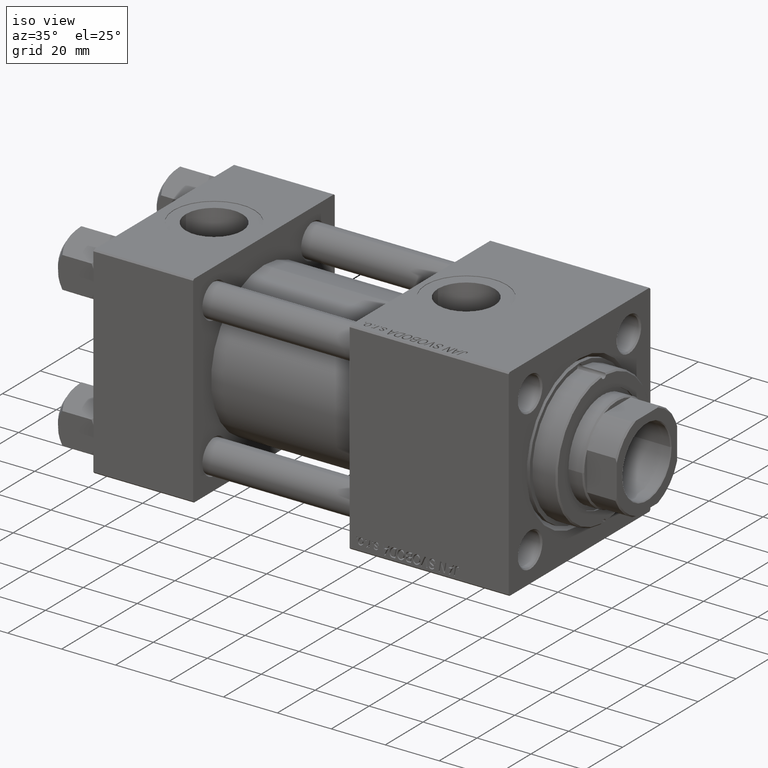
[diagram: clean part render]
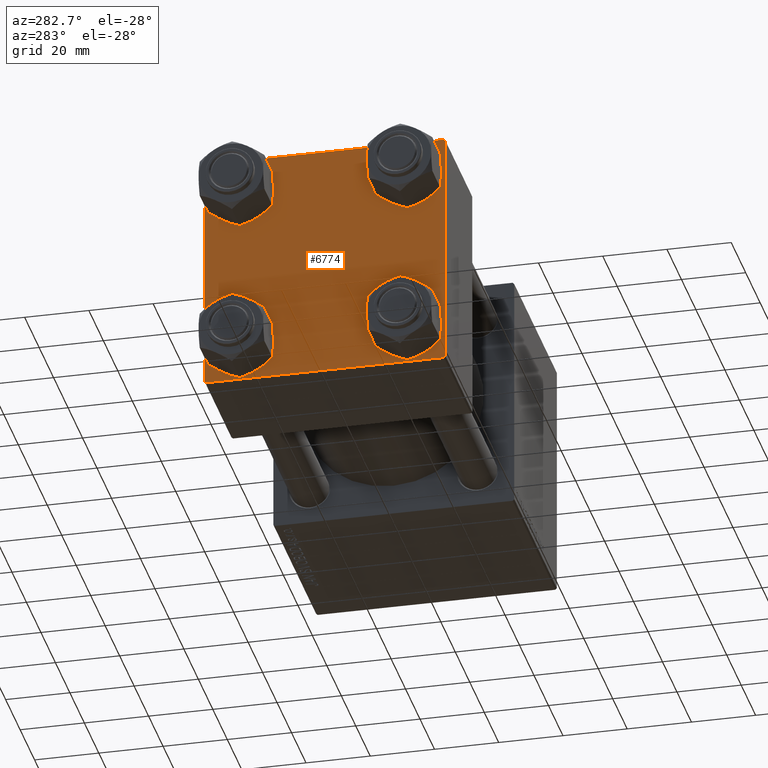
[diagram: tour spotlight — one face highlighted and labeled with its STEP entity id]
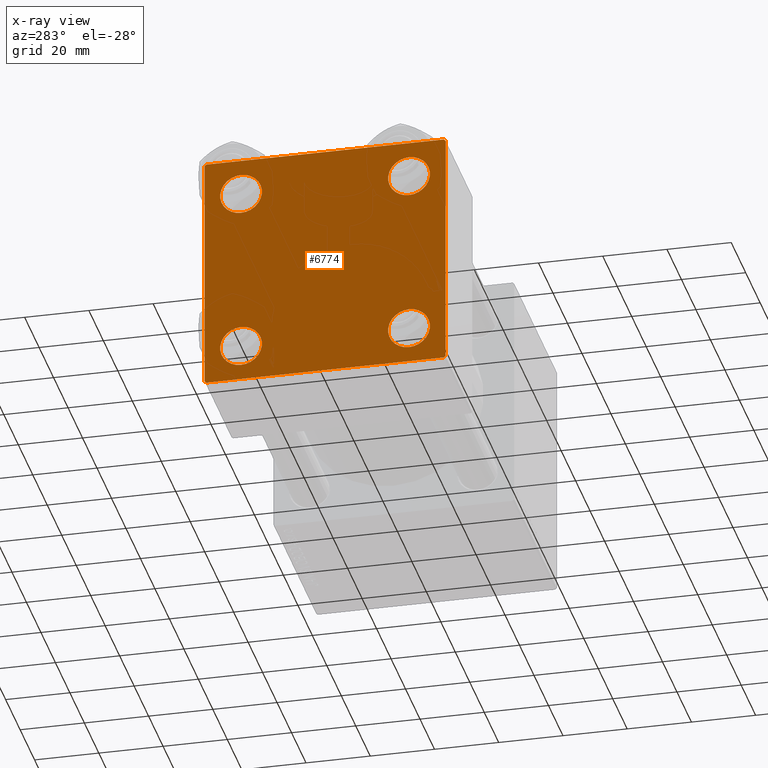
[diagram: x-ray of the same camera — body ghosted, this tour face saturated]
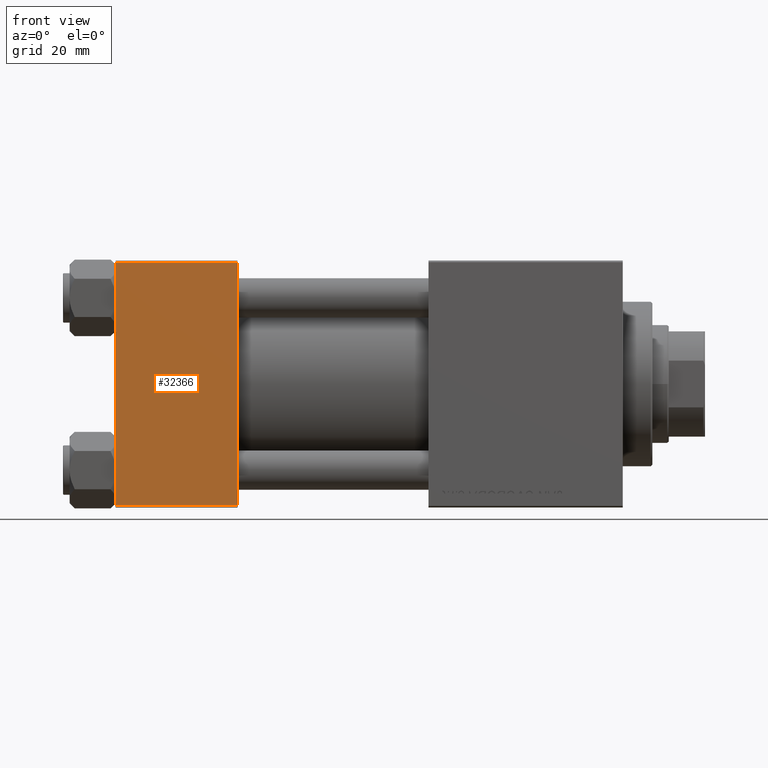
[diagram: tour spotlight — one face highlighted and labeled with its STEP entity id]
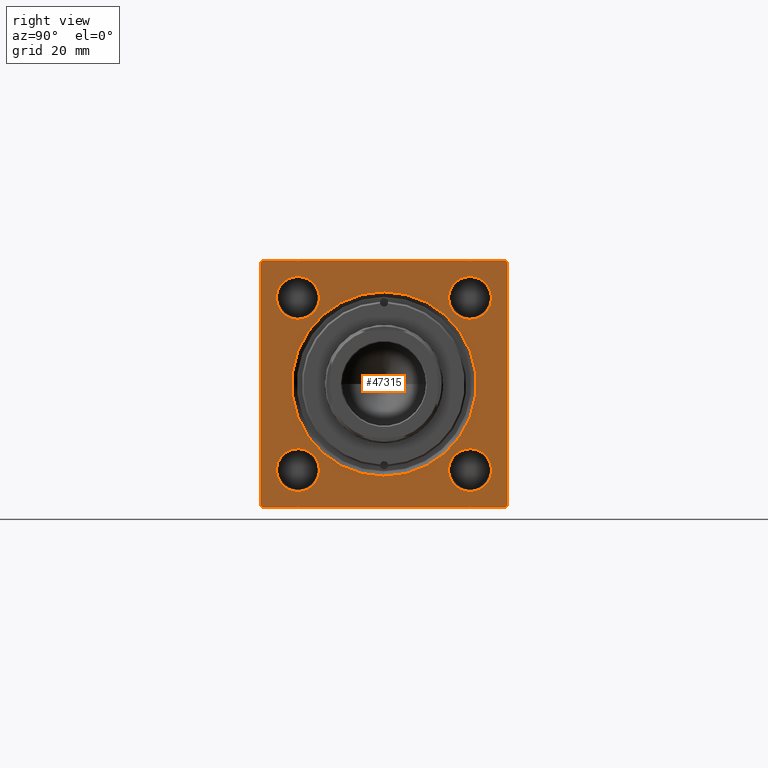
[diagram: tour spotlight — one face highlighted and labeled with its STEP entity id]
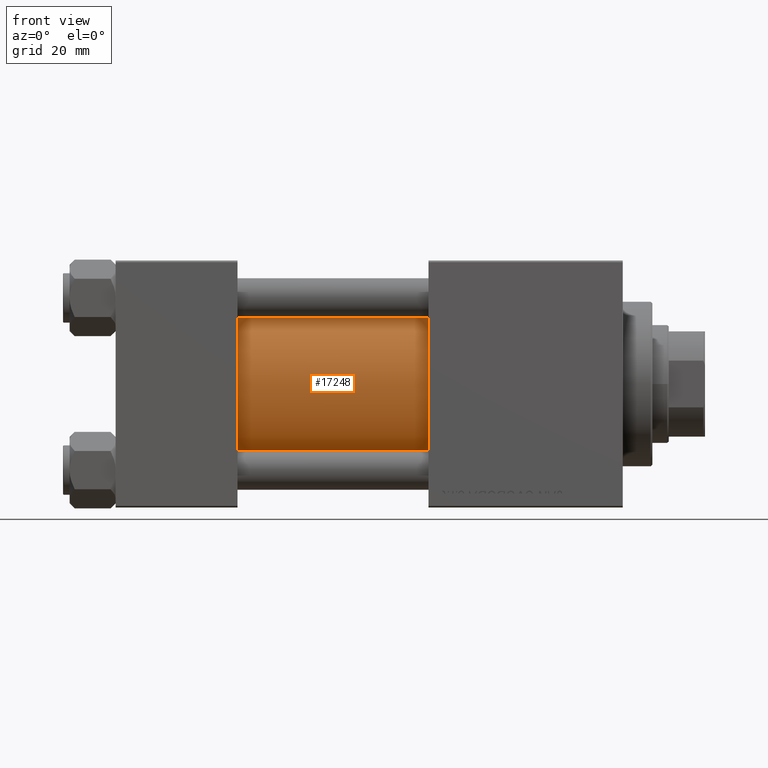
[diagram: tour spotlight — one face highlighted and labeled with its STEP entity id]
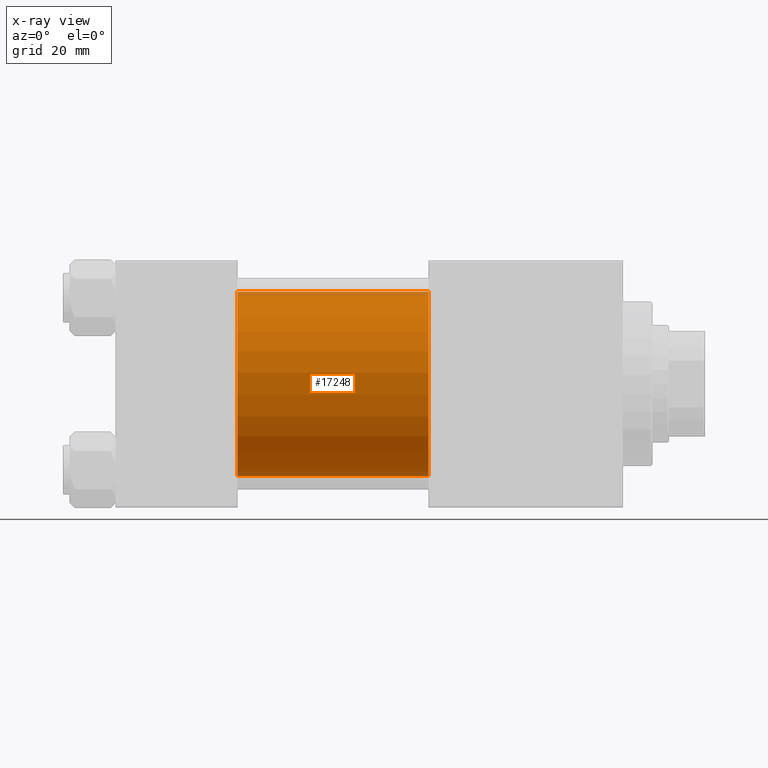
[diagram: x-ray of the same camera — body ghosted, this tour face saturated]
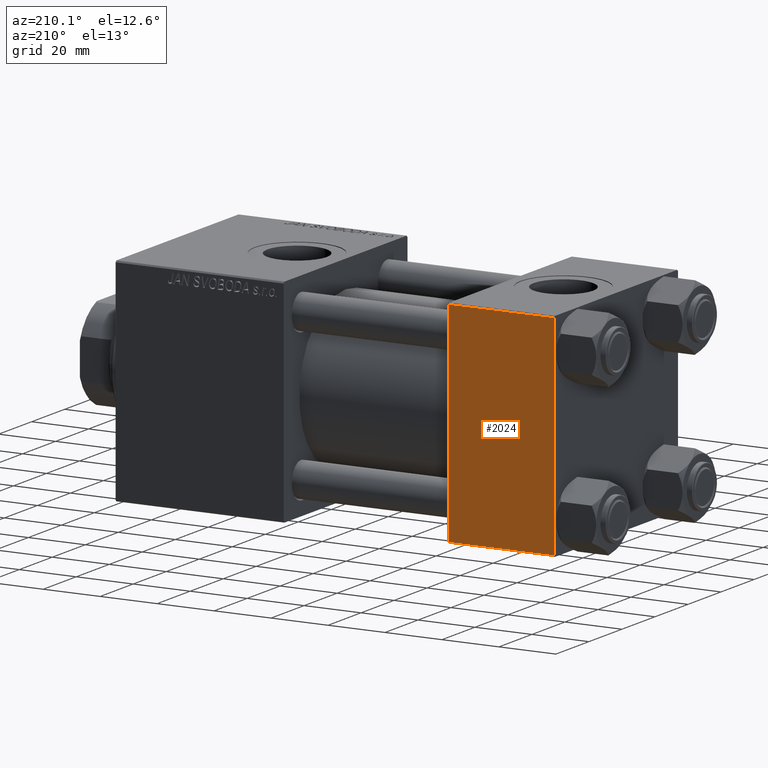
[diagram: tour spotlight — one face highlighted and labeled with its STEP entity id]
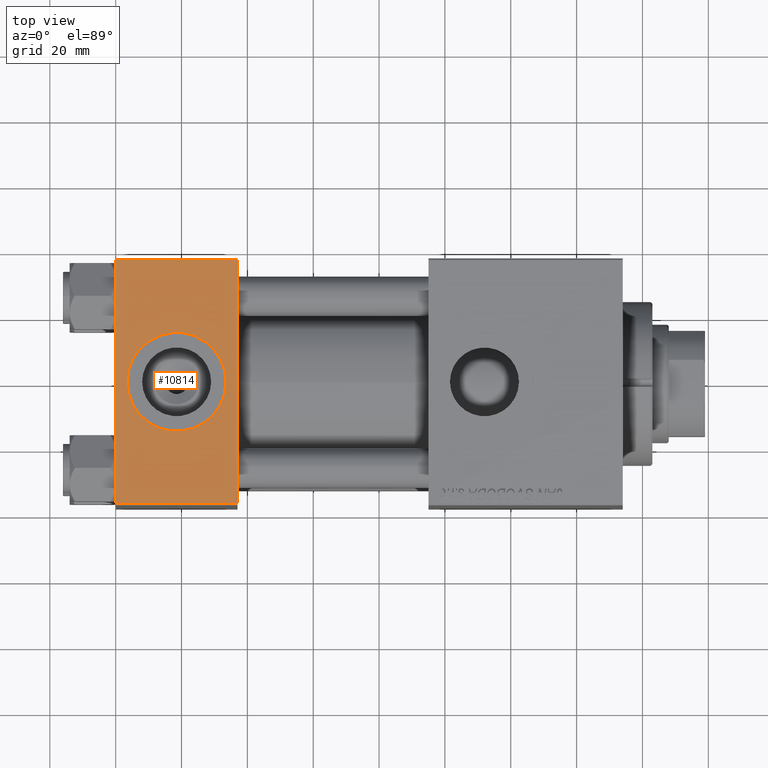
[diagram: tour spotlight — one face highlighted and labeled with its STEP entity id]
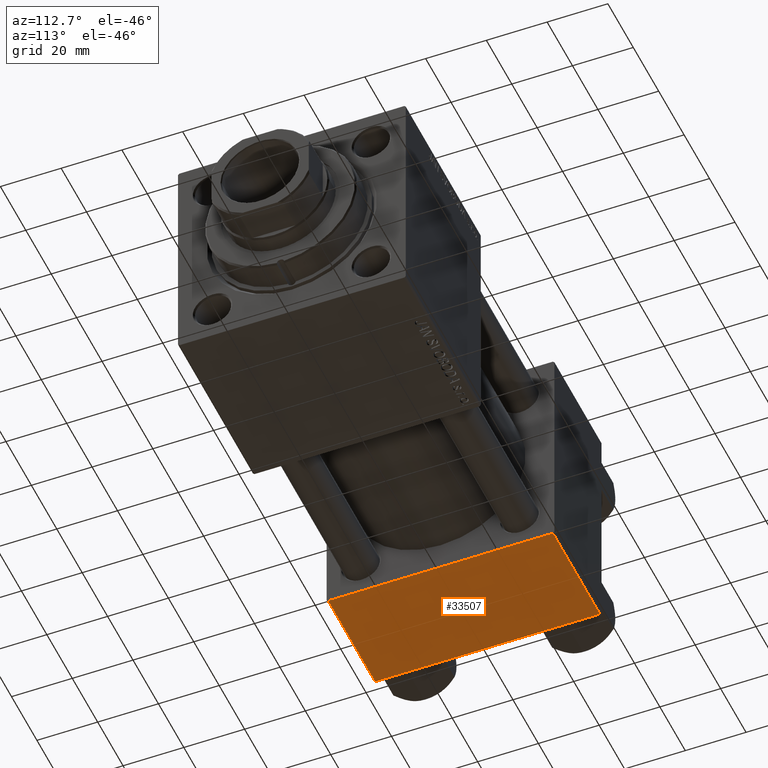
[diagram: tour spotlight — one face highlighted and labeled with its STEP entity id]
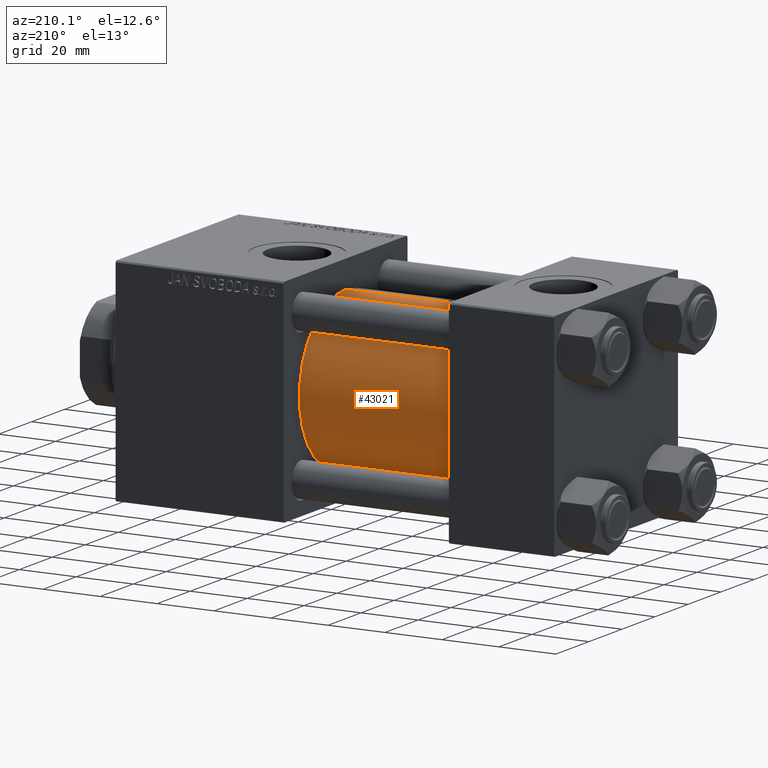
[diagram: tour spotlight — one face highlighted and labeled with its STEP entity id]
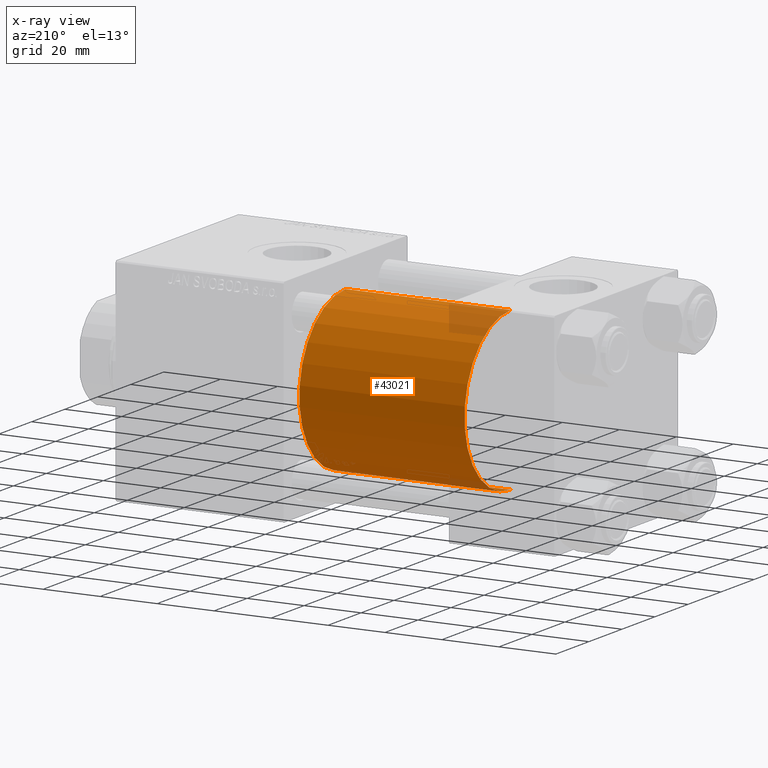
[diagram: x-ray of the same camera — body ghosted, this tour face saturated]
A machine part: a face-by-face anatomy tour. The part has 1154 B-rep faces; the first image is the clean iso view, then the 8 largest visible faces are spotlighted one at a time (largest first), each with its STEP entity span.

Face 1 — auxiliary view, entity #6774. An x-ray twin of the same camera follows (body ghosted, this face saturated) — the face is partly hidden behind the body. In plain terms, the highlighted planar face has unit normal (-1, 0, 0).
Definition (entity closure, byte-faithful):
#21 = CARTESIAN_POINT ( 'NONE',  ( 0.000000000000000000, -37.50000000000000711, 37.49999999999999289 ) ) ;
#38 = CIRCLE ( 'NONE', #38214, 6.500000000000015987 ) ;
#2453 = LINE ( 'NONE', #33061, #19572 ) ;
#2459 = CARTESIAN_POINT ( 'NONE',  ( 0.000000000000000000, 0.000000000000000000, 0.000000000000000000 ) ) ;
#2835 = LINE ( 'NONE', #21, #11469 ) ;
#3163 = CARTESIAN_POINT ( 'NONE',  ( 0.000000000000000000, 36.99999999999997868, -37.50000000000000000 ) ) ;
#3748 = DIRECTION ( 'NONE',  ( 1.000000000000000000, -0.000000000000000000, 0.000000000000000000 ) ) ;
#3811 = CARTESIAN_POINT ( 'NONE',  ( 0.000000000000000000, 26.14999999999999858, -19.64999999999998792 ) ) ;
#4227 = CARTESIAN_POINT ( 'NONE',  ( 0.000000000000000000, -26.14999999999999147, -32.65000000000002700 ) ) ;
#4243 = VERTEX_POINT ( 'NONE', #14207 ) ;
#4665 = LINE ( 'NONE', #16629, #25143 ) ;
#5127 = AXIS2_PLACEMENT_3D ( 'NONE', #48497, #5662, #40333 ) ;
#5648 = EDGE_CURVE ( 'NONE', #4243, #44202, #42470, .T. ) ;
#5662 = DIRECTION ( 'NONE',  ( 1.000000000000000000, -0.000000000000000000, 0.000000000000000000 ) ) ;
#6078 = CARTESIAN_POINT ( 'NONE',  ( 0.000000000000000000, -26.14999999999999147, -19.64999999999999503 ) ) ;
#6277 = FACE_OUTER_BOUND ( 'NONE', #6380, .T. ) ;
#6380 = EDGE_LOOP ( 'NONE', ( #34938, #46342, #20789, #32815, #6808, #30393, #45010, #8440 ) ) ;
#6588 = CARTESIAN_POINT ( 'NONE',  ( 0.000000000000000000, -26.14999999999999147, 26.15000000000000924 ) ) ;
#6774 = ADVANCED_FACE ( 'NONE', ( #13914, #45294, #29497, #10101, #6277 ), #37398, .T. ) ;
#6808 = ORIENTED_EDGE ( 'NONE', *, *, #7170, .F. ) ;
#6833 = VERTEX_POINT ( 'NONE', #4227 ) ;
#7170 = EDGE_CURVE ( 'NONE', #25202, #41153, #2835, .T. ) ;
#7428 = EDGE_CURVE ( 'NONE', #25202, #24914, #14678, .T. ) ;
#7674 = LINE ( 'NONE', #27295, #24661 ) ;
#8440 = ORIENTED_EDGE ( 'NONE', *, *, #27799, .T. ) ;
#8867 = EDGE_CURVE ( 'NONE', #11605, #9486, #34408, .T. ) ;
#9406 = CIRCLE ( 'NONE', #22428, 6.500000000000015987 ) ;
#9486 = VERTEX_POINT ( 'NONE', #3163 ) ;
#10101 = FACE_BOUND ( 'NONE', #16604, .T. ) ;
#10135 = CARTESIAN_POINT ( 'NONE',  ( 0.000000000000000000, 26.14999999999999858, 26.15000000000000213 ) ) ;
#11378 = DIRECTION ( 'NONE',  ( 0.000000000000000000, 0.000000000000000000, 1.000000000000000000 ) ) ;
#11469 = VECTOR ( 'NONE', #45676, 1000.000000000000000 ) ;
#11605 = VERTEX_POINT ( 'NONE', #29239 ) ;
#11994 = DIRECTION ( 'NONE',  ( 0.000000000000000000, -1.000000000000000000, -9.251858538542971581E-17 ) ) ;
#12942 = DIRECTION ( 'NONE',  ( 1.000000000000000000, -0.000000000000000000, 0.000000000000000000 ) ) ;
#13188 = CIRCLE ( 'NONE', #39281, 6.500000000000015987 ) ;
#13840 = DIRECTION ( 'NONE',  ( 1.000000000000000000, -0.000000000000000000, 0.000000000000000000 ) ) ;
#13914 = FACE_BOUND ( 'NONE', #23428, .T. ) ;
#14207 = CARTESIAN_POINT ( 'NONE',  ( 0.000000000000000000, 26.14999999999999858, 19.64999999999998437 ) ) ;
#14228 = DIRECTION ( 'NONE',  ( 1.000000000000000000, -0.000000000000000000, 0.000000000000000000 ) ) ;
#14284 = DIRECTION ( 'NONE',  ( 1.000000000000000000, -0.000000000000000000, 0.000000000000000000 ) ) ;
#14678 = LINE ( 'NONE', #41975, #35091 ) ;
#14959 = CARTESIAN_POINT ( 'NONE',  ( 0.000000000000000000, -26.14999999999999147, 26.15000000000000924 ) ) ;
#15063 = LINE ( 'NONE', #46707, #28856 ) ;
#15534 = DIRECTION ( 'NONE',  ( 1.000000000000000000, -0.000000000000000000, 0.000000000000000000 ) ) ;
#16387 = ORIENTED_EDGE ( 'NONE', *, *, #36297, .T. ) ;
#16604 = EDGE_LOOP ( 'NONE', ( #22097, #27252 ) ) ;
#16629 = CARTESIAN_POINT ( 'NONE',  ( 0.000000000000000000, 37.49999999999999289, -37.50000000000000000 ) ) ;
#17904 = CARTESIAN_POINT ( 'NONE',  ( 0.000000000000000000, -37.50000000000000000, -37.00000000000003553 ) ) ;
#17986 = DIRECTION ( 'NONE',  ( -0.000000000000000000, 0.000000000000000000, 1.000000000000000000 ) ) ;
#18243 = VECTOR ( 'NONE', #43688, 1000.000000000000000 ) ;
#19572 = VECTOR ( 'NONE', #33306, 1000.000000000000114 ) ;
#20460 = AXIS2_PLACEMENT_3D ( 'NONE', #44224, #13840, #29423 ) ;
#20789 = ORIENTED_EDGE ( 'NONE', *, *, #23470, .T. ) ;
#21505 = VERTEX_POINT ( 'NONE', #35139 ) ;
#22097 = ORIENTED_EDGE ( 'NONE', *, *, #34506, .T. ) ;
#22128 = AXIS2_PLACEMENT_3D ( 'NONE', #2459, #49622, #17986 ) ;
#22428 = AXIS2_PLACEMENT_3D ( 'NONE', #27192, #3748, #11378 ) ;
#22775 = ORIENTED_EDGE ( 'NONE', *, *, #34688, .T. ) ;
#22856 = DIRECTION ( 'NONE',  ( 1.000000000000000000, -0.000000000000000000, 0.000000000000000000 ) ) ;
#22876 = DIRECTION ( 'NONE',  ( 0.000000000000000000, 0.000000000000000000, 1.000000000000000000 ) ) ;
#22900 = CARTESIAN_POINT ( 'NONE',  ( 0.000000000000000000, -37.00000000000002132, -37.50000000000000711 ) ) ;
#23428 = EDGE_LOOP ( 'NONE', ( #22775, #39638 ) ) ;
#23463 = DIRECTION ( 'NONE',  ( 0.000000000000000000, -0.7071067811865524577, 0.7071067811865426878 ) ) ;
#23470 = EDGE_CURVE ( 'NONE', #9486, #23859, #4665, .T. ) ;
#23647 = VERTEX_POINT ( 'NONE', #46698 ) ;
#23794 = CIRCLE ( 'NONE', #27868, 6.500000000000023093 ) ;
#23859 = VERTEX_POINT ( 'NONE', #22900 ) ;
#24661 = VECTOR ( 'NONE', #23463, 1000.000000000000000 ) ;
#24914 = VERTEX_POINT ( 'NONE', #47250 ) ;
#25143 = VECTOR ( 'NONE', #47744, 1000.000000000000000 ) ;
#25202 = VERTEX_POINT ( 'NONE', #35728 ) ;
#25394 = AXIS2_PLACEMENT_3D ( 'NONE', #10135, #12942, #25683 ) ;
#25683 = DIRECTION ( 'NONE',  ( 0.000000000000000000, 0.000000000000000000, 1.000000000000000000 ) ) ;
#27192 = CARTESIAN_POINT ( 'NONE',  ( 0.000000000000000000, -26.14999999999999147, -26.15000000000000924 ) ) ;
#27252 = ORIENTED_EDGE ( 'NONE', *, *, #5648, .T. ) ;
#27295 = CARTESIAN_POINT ( 'NONE',  ( 0.000000000000000000, -37.24999999999975842, -37.25000000000027001 ) ) ;
#27697 = EDGE_CURVE ( 'NONE', #49457, #34279, #38, .T. ) ;
#27799 = EDGE_CURVE ( 'NONE', #47084, #23647, #2453, .T. ) ;
#27868 = AXIS2_PLACEMENT_3D ( 'NONE', #14959, #22856, #45332 ) ;
#28856 = VECTOR ( 'NONE', #11994, 1000.000000000000000 ) ;
#29239 = CARTESIAN_POINT ( 'NONE',  ( 0.000000000000000000, 37.49999999999999289, -36.99999999999998579 ) ) ;
#29423 = DIRECTION ( 'NONE',  ( 0.000000000000000000, 0.000000000000000000, 1.000000000000000000 ) ) ;
#29497 = FACE_BOUND ( 'NONE', #41516, .T. ) ;
#29745 = VERTEX_POINT ( 'NONE', #30767 ) ;
#30001 = DIRECTION ( 'NONE',  ( -0.000000000000000000, 0.7071067811865474617, 0.7071067811865474617 ) ) ;
#30393 = ORIENTED_EDGE ( 'NONE', *, *, #7428, .T. ) ;
#30767 = CARTESIAN_POINT ( 'NONE',  ( 0.000000000000000000, -26.14999999999999147, 32.65000000000003411 ) ) ;
#30850 = VERTEX_POINT ( 'NONE', #6078 ) ;
#31122 = DIRECTION ( 'NONE',  ( 0.000000000000000000, 0.000000000000000000, 1.000000000000000000 ) ) ;
#32708 = LINE ( 'NONE', #48257, #18243 ) ;
#32815 = ORIENTED_EDGE ( 'NONE', *, *, #36462, .T. ) ;
#33061 = CARTESIAN_POINT ( 'NONE',  ( 0.000000000000000000, 37.24999999999999289, 37.24999999999999289 ) ) ;
#33306 = DIRECTION ( 'NONE',  ( 0.000000000000000000, 0.7071067811865474617, -0.7071067811865474617 ) ) ;
#34279 = VERTEX_POINT ( 'NONE', #3811 ) ;
#34408 = LINE ( 'NONE', #39482, #46547 ) ;
#34506 = EDGE_CURVE ( 'NONE', #44202, #4243, #43327, .T. ) ;
#34688 = EDGE_CURVE ( 'NONE', #29745, #21505, #23794, .T. ) ;
#34938 = ORIENTED_EDGE ( 'NONE', *, *, #43058, .T. ) ;
#35091 = VECTOR ( 'NONE', #30001, 1000.000000000000114 ) ;
#35139 = CARTESIAN_POINT ( 'NONE',  ( 0.000000000000000000, -26.14999999999999147, 19.64999999999999147 ) ) ;
#35144 = EDGE_CURVE ( 'NONE', #6833, #30850, #13188, .T. ) ;
#35324 = AXIS2_PLACEMENT_3D ( 'NONE', #6588, #14228, #44859 ) ;
#35728 = CARTESIAN_POINT ( 'NONE',  ( 0.000000000000000000, -37.50000000000000711, 36.99999999999999289 ) ) ;
#36297 = EDGE_CURVE ( 'NONE', #34279, #49457, #49102, .T. ) ;
#36462 = EDGE_CURVE ( 'NONE', #23859, #41153, #7674, .T. ) ;
#37398 = PLANE ( 'NONE',  #22128 ) ;
#38138 = CARTESIAN_POINT ( 'NONE',  ( 0.000000000000000000, 36.99999999999999289, 37.50000000000000000 ) ) ;
#38214 = AXIS2_PLACEMENT_3D ( 'NONE', #49238, #14284, #22876 ) ;
#38335 = EDGE_CURVE ( 'NONE', #21505, #29745, #45895, .T. ) ;
#38479 = DIRECTION ( 'NONE',  ( -0.000000000000000000, -0.7071067811865474617, -0.7071067811865474617 ) ) ;
#39281 = AXIS2_PLACEMENT_3D ( 'NONE', #45653, #15534, #31122 ) ;
#39482 = CARTESIAN_POINT ( 'NONE',  ( 0.000000000000000000, 37.24999999999998579, -37.24999999999998579 ) ) ;
#39638 = ORIENTED_EDGE ( 'NONE', *, *, #38335, .T. ) ;
#40333 = DIRECTION ( 'NONE',  ( 0.000000000000000000, 0.000000000000000000, 1.000000000000000000 ) ) ;
#41153 = VERTEX_POINT ( 'NONE', #17904 ) ;
#41516 = EDGE_LOOP ( 'NONE', ( #16387, #45796 ) ) ;
#41831 = EDGE_LOOP ( 'NONE', ( #49414, #45802 ) ) ;
#41965 = CARTESIAN_POINT ( 'NONE',  ( 0.000000000000000000, 26.14999999999999858, -32.65000000000001990 ) ) ;
#41975 = CARTESIAN_POINT ( 'NONE',  ( -0.000000000000000000, -37.25000000000000000, 37.25000000000000000 ) ) ;
#42470 = CIRCLE ( 'NONE', #20460, 6.500000000000023093 ) ;
#43058 = EDGE_CURVE ( 'NONE', #23647, #11605, #32708, .T. ) ;
#43182 = EDGE_CURVE ( 'NONE', #47084, #24914, #15063, .T. ) ;
#43327 = CIRCLE ( 'NONE', #25394, 6.500000000000023093 ) ;
#43394 = CARTESIAN_POINT ( 'NONE',  ( 0.000000000000000000, 26.14999999999999858, 32.65000000000002700 ) ) ;
#43688 = DIRECTION ( 'NONE',  ( 0.000000000000000000, 0.000000000000000000, -1.000000000000000000 ) ) ;
#44202 = VERTEX_POINT ( 'NONE', #43394 ) ;
#44224 = CARTESIAN_POINT ( 'NONE',  ( 0.000000000000000000, 26.14999999999999858, 26.15000000000000213 ) ) ;
#44859 = DIRECTION ( 'NONE',  ( 0.000000000000000000, 0.000000000000000000, 1.000000000000000000 ) ) ;
#45010 = ORIENTED_EDGE ( 'NONE', *, *, #43182, .F. ) ;
#45024 = EDGE_CURVE ( 'NONE', #30850, #6833, #9406, .T. ) ;
#45294 = FACE_BOUND ( 'NONE', #41831, .T. ) ;
#45332 = DIRECTION ( 'NONE',  ( 0.000000000000000000, 0.000000000000000000, 1.000000000000000000 ) ) ;
#45653 = CARTESIAN_POINT ( 'NONE',  ( 0.000000000000000000, -26.14999999999999147, -26.15000000000000924 ) ) ;
#45676 = DIRECTION ( 'NONE',  ( 0.000000000000000000, 9.251858538542971581E-17, -1.000000000000000000 ) ) ;
#45796 = ORIENTED_EDGE ( 'NONE', *, *, #27697, .T. ) ;
#45802 = ORIENTED_EDGE ( 'NONE', *, *, #35144, .T. ) ;
#45895 = CIRCLE ( 'NONE', #35324, 6.500000000000023093 ) ;
#46342 = ORIENTED_EDGE ( 'NONE', *, *, #8867, .T. ) ;
#46547 = VECTOR ( 'NONE', #38479, 1000.000000000000114 ) ;
#46698 = CARTESIAN_POINT ( 'NONE',  ( 0.000000000000000000, 37.49999999999999289, 37.00000000000000000 ) ) ;
#46707 = CARTESIAN_POINT ( 'NONE',  ( 0.000000000000000000, 37.49999999999999289, 37.50000000000000000 ) ) ;
#47084 = VERTEX_POINT ( 'NONE', #38138 ) ;
#47250 = CARTESIAN_POINT ( 'NONE',  ( 0.000000000000000000, -37.00000000000000711, 37.49999999999999289 ) ) ;
#47744 = DIRECTION ( 'NONE',  ( 0.000000000000000000, -1.000000000000000000, -9.251858538542972814E-17 ) ) ;
#48257 = CARTESIAN_POINT ( 'NONE',  ( 0.000000000000000000, 37.49999999999999289, 37.50000000000000000 ) ) ;
#48497 = CARTESIAN_POINT ( 'NONE',  ( 0.000000000000000000, 26.14999999999999858, -26.15000000000000213 ) ) ;
#49102 = CIRCLE ( 'NONE', #5127, 6.500000000000015987 ) ;
#49238 = CARTESIAN_POINT ( 'NONE',  ( 0.000000000000000000, 26.14999999999999858, -26.15000000000000213 ) ) ;
#49414 = ORIENTED_EDGE ( 'NONE', *, *, #45024, .T. ) ;
#49457 = VERTEX_POINT ( 'NONE', #41965 ) ;
#49622 = DIRECTION ( 'NONE',  ( -1.000000000000000000, 0.000000000000000000, -0.000000000000000000 ) ) ;

Face 2 — front view, entity #32366. In plain terms, the highlighted planar face has unit normal (0, 1, 0).
Definition (entity closure, byte-faithful):
#21 = CARTESIAN_POINT ( 'NONE',  ( 0.000000000000000000, -37.50000000000000711, 37.49999999999999289 ) ) ;
#591 = ORIENTED_EDGE ( 'NONE', *, *, #31151, .F. ) ;
#2835 = LINE ( 'NONE', #21, #11469 ) ;
#3476 = CARTESIAN_POINT ( 'NONE',  ( 37.00000000000000000, -37.50000000000000711, 36.99999999999999289 ) ) ;
#4409 = DIRECTION ( 'NONE',  ( 1.000000000000000000, 0.000000000000000000, 0.000000000000000000 ) ) ;
#4773 = VECTOR ( 'NONE', #4409, 1000.000000000000000 ) ;
#7170 = EDGE_CURVE ( 'NONE', #25202, #41153, #2835, .T. ) ;
#7271 = FACE_OUTER_BOUND ( 'NONE', #8498, .T. ) ;
#8498 = EDGE_LOOP ( 'NONE', ( #26535, #45142, #591, #19206 ) ) ;
#8834 = LINE ( 'NONE', #48090, #16321 ) ;
#11469 = VECTOR ( 'NONE', #45676, 1000.000000000000000 ) ;
#11593 = PLANE ( 'NONE',  #17954 ) ;
#13144 = DIRECTION ( 'NONE',  ( 0.000000000000000000, 9.251858538542971581E-17, -1.000000000000000000 ) ) ;
#16321 = VECTOR ( 'NONE', #13144, 1000.000000000000000 ) ;
#17904 = CARTESIAN_POINT ( 'NONE',  ( 0.000000000000000000, -37.50000000000000000, -37.00000000000003553 ) ) ;
#17954 = AXIS2_PLACEMENT_3D ( 'NONE', #26641, #19757, #35339 ) ;
#18021 = VERTEX_POINT ( 'NONE', #26753 ) ;
#19206 = ORIENTED_EDGE ( 'NONE', *, *, #29768, .T. ) ;
#19757 = DIRECTION ( 'NONE',  ( -0.000000000000000000, 1.000000000000000000, 9.251858538542971581E-17 ) ) ;
#22078 = EDGE_CURVE ( 'NONE', #41153, #27521, #46990, .T. ) ;
#25202 = VERTEX_POINT ( 'NONE', #35728 ) ;
#26535 = ORIENTED_EDGE ( 'NONE', *, *, #7170, .T. ) ;
#26641 = CARTESIAN_POINT ( 'NONE',  ( 37.00000000000000000, -37.50000000000000711, 37.49999999999999289 ) ) ;
#26753 = CARTESIAN_POINT ( 'NONE',  ( 37.00000000000000000, -37.50000000000000711, 36.99999999999999289 ) ) ;
#27086 = CARTESIAN_POINT ( 'NONE',  ( 37.00000000000000000, -37.50000000000000000, -37.00000000000003553 ) ) ;
#27521 = VERTEX_POINT ( 'NONE', #47481 ) ;
#29768 = EDGE_CURVE ( 'NONE', #18021, #25202, #38661, .T. ) ;
#30006 = DIRECTION ( 'NONE',  ( -1.000000000000000000, 0.000000000000000000, 0.000000000000000000 ) ) ;
#30947 = VECTOR ( 'NONE', #30006, 1000.000000000000000 ) ;
#31151 = EDGE_CURVE ( 'NONE', #18021, #27521, #8834, .T. ) ;
#32366 = ADVANCED_FACE ( 'NONE', ( #7271 ), #11593, .F. ) ;
#35339 = DIRECTION ( 'NONE',  ( 0.000000000000000000, -9.251858538542971581E-17, 1.000000000000000000 ) ) ;
#35728 = CARTESIAN_POINT ( 'NONE',  ( 0.000000000000000000, -37.50000000000000711, 36.99999999999999289 ) ) ;
#38661 = LINE ( 'NONE', #3476, #30947 ) ;
#41153 = VERTEX_POINT ( 'NONE', #17904 ) ;
#45142 = ORIENTED_EDGE ( 'NONE', *, *, #22078, .T. ) ;
#45676 = DIRECTION ( 'NONE',  ( 0.000000000000000000, 9.251858538542971581E-17, -1.000000000000000000 ) ) ;
#46990 = LINE ( 'NONE', #27086, #4773 ) ;
#47481 = CARTESIAN_POINT ( 'NONE',  ( 37.00000000000000000, -37.50000000000000000, -37.00000000000003553 ) ) ;
#48090 = CARTESIAN_POINT ( 'NONE',  ( 37.00000000000000000, -37.50000000000000711, 37.49999999999999289 ) ) ;

Face 3 — right view, entity #47315. In plain terms, the highlighted planar face has unit normal (-1, 0, 0).
Definition (entity closure, byte-faithful):
#542 = EDGE_LOOP ( 'NONE', ( #5642, #27031 ) ) ;
#1162 = EDGE_CURVE ( 'NONE', #21656, #17347, #36651, .T. ) ;
#1211 = EDGE_CURVE ( 'NONE', #5307, #9248, #20660, .T. ) ;
#1421 = ORIENTED_EDGE ( 'NONE', *, *, #18237, .T. ) ;
#1547 = CARTESIAN_POINT ( 'NONE',  ( 154.0000000000000000, 26.14999999999999858, 26.15000000000000213 ) ) ;
#1803 = VECTOR ( 'NONE', #12695, 999.9999999999998863 ) ;
#2558 = CARTESIAN_POINT ( 'NONE',  ( 154.0000000000000000, -26.15000000000000213, -26.15000000000000213 ) ) ;
#2626 = VERTEX_POINT ( 'NONE', #48407 ) ;
#2715 = EDGE_CURVE ( 'NONE', #34349, #22836, #4106, .T. ) ;
#2752 = EDGE_CURVE ( 'NONE', #3470, #35299, #39122, .T. ) ;
#3332 = VERTEX_POINT ( 'NONE', #38317 ) ;
#3470 = VERTEX_POINT ( 'NONE', #42849 ) ;
#3629 = CIRCLE ( 'NONE', #16539, 6.499999999999974243 ) ;
#3714 = ORIENTED_EDGE ( 'NONE', *, *, #20186, .F. ) ;
#4023 = EDGE_CURVE ( 'NONE', #25488, #10212, #19091, .T. ) ;
#4106 = CIRCLE ( 'NONE', #9802, 6.499999999999974243 ) ;
#5307 = VERTEX_POINT ( 'NONE', #31564 ) ;
#5642 = ORIENTED_EDGE ( 'NONE', *, *, #2752, .T. ) ;
#5891 = EDGE_LOOP ( 'NONE', ( #12684, #26524 ) ) ;
#6752 = VERTEX_POINT ( 'NONE', #45801 ) ;
#7094 = DIRECTION ( 'NONE',  ( 0.000000000000000000, 0.000000000000000000, 1.000000000000000000 ) ) ;
#7286 = EDGE_LOOP ( 'NONE', ( #46622, #42272 ) ) ;
#7399 = ORIENTED_EDGE ( 'NONE', *, *, #47988, .T. ) ;
#7595 = LINE ( 'NONE', #18792, #16870 ) ;
#8100 = DIRECTION ( 'NONE',  ( 0.000000000000000000, -1.000000000000000000, -1.850371707708594316E-16 ) ) ;
#8408 = CARTESIAN_POINT ( 'NONE',  ( 154.0000000000000000, -36.99999999999998579, -37.50000000000000000 ) ) ;
#8899 = DIRECTION ( 'NONE',  ( -1.000000000000000000, -0.000000000000000000, 0.000000000000000000 ) ) ;
#9103 = VERTEX_POINT ( 'NONE', #45068 ) ;
#9248 = VERTEX_POINT ( 'NONE', #47328 ) ;
#9802 = AXIS2_PLACEMENT_3D ( 'NONE', #33109, #35517, #27834 ) ;
#10212 = VERTEX_POINT ( 'NONE', #47086 ) ;
#10374 = DIRECTION ( 'NONE',  ( 0.000000000000000000, 0.000000000000000000, 1.000000000000000000 ) ) ;
#10391 = DIRECTION ( 'NONE',  ( 0.000000000000000000, 0.000000000000000000, 1.000000000000000000 ) ) ;
#10933 = EDGE_CURVE ( 'NONE', #9103, #2626, #44976, .T. ) ;
#11138 = EDGE_CURVE ( 'NONE', #5307, #23636, #16530, .T. ) ;
#11564 = EDGE_CURVE ( 'NONE', #10212, #47826, #37903, .T. ) ;
#11695 = CIRCLE ( 'NONE', #25571, 6.499999999999974243 ) ;
#11740 = CARTESIAN_POINT ( 'NONE',  ( 154.0000000000000000, 37.50000000000000000, -36.99999999999999289 ) ) ;
#11956 = CARTESIAN_POINT ( 'NONE',  ( 154.0000000000000000, 3.429011037612588881E-15, 27.99999999999999645 ) ) ;
#11971 = VECTOR ( 'NONE', #19038, 1000.000000000000114 ) ;
#12453 = CARTESIAN_POINT ( 'NONE',  ( 154.0000000000000000, 37.50000000000000000, -36.99999999999999289 ) ) ;
#12466 = AXIS2_PLACEMENT_3D ( 'NONE', #48639, #33335, #10374 ) ;
#12590 = FACE_BOUND ( 'NONE', #16840, .T. ) ;
#12684 = ORIENTED_EDGE ( 'NONE', *, *, #42073, .T. ) ;
#12695 = DIRECTION ( 'NONE',  ( -0.000000000000000000, 0.7071067811865425767, 0.7071067811865525687 ) ) ;
#13389 = EDGE_CURVE ( 'NONE', #35299, #3470, #48280, .T. ) ;
#13488 = DIRECTION ( 'NONE',  ( -1.000000000000000000, -0.000000000000000000, 0.000000000000000000 ) ) ;
#16100 = ORIENTED_EDGE ( 'NONE', *, *, #10933, .T. ) ;
#16530 = LINE ( 'NONE', #12453, #1803 ) ;
#16539 = AXIS2_PLACEMENT_3D ( 'NONE', #2558, #18336, #18087 ) ;
#16840 = EDGE_LOOP ( 'NONE', ( #41059, #43617 ) ) ;
#16870 = VECTOR ( 'NONE', #8100, 1000.000000000000000 ) ;
#16912 = FACE_BOUND ( 'NONE', #49976, .T. ) ;
#17084 = DIRECTION ( 'NONE',  ( -1.000000000000000000, -0.000000000000000000, 0.000000000000000000 ) ) ;
#17347 = VERTEX_POINT ( 'NONE', #39930 ) ;
#17879 = CIRCLE ( 'NONE', #35865, 6.500000000000002665 ) ;
#18087 = DIRECTION ( 'NONE',  ( 0.000000000000000000, 0.000000000000000000, 1.000000000000000000 ) ) ;
#18237 = EDGE_CURVE ( 'NONE', #6752, #30918, #22366, .T. ) ;
#18336 = DIRECTION ( 'NONE',  ( -1.000000000000000000, -0.000000000000000000, 0.000000000000000000 ) ) ;
#18708 = VECTOR ( 'NONE', #28573, 1000.000000000000000 ) ;
#18792 = CARTESIAN_POINT ( 'NONE',  ( 154.0000000000000000, 37.50000000000000000, 37.49999999999999289 ) ) ;
#19038 = DIRECTION ( 'NONE',  ( 0.000000000000000000, -0.7071067811865474617, 0.7071067811865474617 ) ) ;
#19091 = LINE ( 'NONE', #35192, #49745 ) ;
#19108 = EDGE_CURVE ( 'NONE', #30918, #25488, #7595, .T. ) ;
#20186 = EDGE_CURVE ( 'NONE', #6752, #23636, #45902, .T. ) ;
#20660 = LINE ( 'NONE', #44889, #18708 ) ;
#20959 = VERTEX_POINT ( 'NONE', #38633 ) ;
#21656 = VERTEX_POINT ( 'NONE', #41450 ) ;
#22026 = AXIS2_PLACEMENT_3D ( 'NONE', #25190, #22112, #10391 ) ;
#22112 = DIRECTION ( 'NONE',  ( -1.000000000000000000, -0.000000000000000000, 0.000000000000000000 ) ) ;
#22366 = LINE ( 'NONE', #46857, #11971 ) ;
#22668 = CARTESIAN_POINT ( 'NONE',  ( 154.0000000000000000, 37.50000000000000000, 37.49999999999999289 ) ) ;
#22836 = VERTEX_POINT ( 'NONE', #31826 ) ;
#22965 = AXIS2_PLACEMENT_3D ( 'NONE', #1547, #17084, #40300 ) ;
#23636 = VERTEX_POINT ( 'NONE', #11740 ) ;
#23953 = DIRECTION ( 'NONE',  ( 0.000000000000000000, 0.7071067811865671127, -0.7071067811865279218 ) ) ;
#24240 = CARTESIAN_POINT ( 'NONE',  ( 154.0000000000000000, -26.14999999999999147, 26.14999999999999503 ) ) ;
#24324 = FACE_BOUND ( 'NONE', #5891, .T. ) ;
#24437 = AXIS2_PLACEMENT_3D ( 'NONE', #24240, #27564, #35992 ) ;
#24828 = FACE_OUTER_BOUND ( 'NONE', #25245, .T. ) ;
#25175 = ORIENTED_EDGE ( 'NONE', *, *, #1211, .F. ) ;
#25190 = CARTESIAN_POINT ( 'NONE',  ( 154.0000000000000000, 0.000000000000000000, 0.000000000000000000 ) ) ;
#25245 = EDGE_LOOP ( 'NONE', ( #38710, #7399, #25175, #49971, #3714, #1421, #40731, #39697 ) ) ;
#25488 = VERTEX_POINT ( 'NONE', #31083 ) ;
#25571 = AXIS2_PLACEMENT_3D ( 'NONE', #48755, #26719, #29381 ) ;
#25745 = CIRCLE ( 'NONE', #29841, 6.499999999999974243 ) ;
#25898 = DIRECTION ( 'NONE',  ( 0.000000000000000000, -9.251858538542972814E-17, -1.000000000000000000 ) ) ;
#26524 = ORIENTED_EDGE ( 'NONE', *, *, #47999, .T. ) ;
#26719 = DIRECTION ( 'NONE',  ( -1.000000000000000000, -0.000000000000000000, 0.000000000000000000 ) ) ;
#27031 = ORIENTED_EDGE ( 'NONE', *, *, #13389, .T. ) ;
#27564 = DIRECTION ( 'NONE',  ( -1.000000000000000000, -0.000000000000000000, 0.000000000000000000 ) ) ;
#27834 = DIRECTION ( 'NONE',  ( 0.000000000000000000, 0.000000000000000000, 1.000000000000000000 ) ) ;
#28011 = CARTESIAN_POINT ( 'NONE',  ( 154.0000000000000000, -26.15000000000000213, -32.64999999999998437 ) ) ;
#28150 = FACE_BOUND ( 'NONE', #542, .T. ) ;
#28573 = DIRECTION ( 'NONE',  ( 0.000000000000000000, -1.000000000000000000, 0.000000000000000000 ) ) ;
#28664 = PLANE ( 'NONE',  #30683 ) ;
#29040 = VECTOR ( 'NONE', #23953, 1000.000000000000000 ) ;
#29381 = DIRECTION ( 'NONE',  ( 0.000000000000000000, 0.000000000000000000, 1.000000000000000000 ) ) ;
#29482 = EDGE_CURVE ( 'NONE', #17347, #21656, #17879, .T. ) ;
#29841 = AXIS2_PLACEMENT_3D ( 'NONE', #35704, #8899, #39755 ) ;
#29895 = ORIENTED_EDGE ( 'NONE', *, *, #37472, .T. ) ;
#30292 = CARTESIAN_POINT ( 'NONE',  ( 154.0000000000000000, 37.00000000000000000, 37.49999999999999289 ) ) ;
#30683 = AXIS2_PLACEMENT_3D ( 'NONE', #32487, #32237, #40134 ) ;
#30918 = VERTEX_POINT ( 'NONE', #30292 ) ;
#31083 = CARTESIAN_POINT ( 'NONE',  ( 154.0000000000000000, -36.99999999999997158, 37.49999999999997868 ) ) ;
#31116 = DIRECTION ( 'NONE',  ( -0.000000000000000000, -0.7071067811865474617, -0.7071067811865474617 ) ) ;
#31564 = CARTESIAN_POINT ( 'NONE',  ( 154.0000000000000000, 37.00000000000000000, -37.50000000000000000 ) ) ;
#31621 = LINE ( 'NONE', #8408, #29040 ) ;
#31826 = CARTESIAN_POINT ( 'NONE',  ( 154.0000000000000000, -26.15000000000000213, -19.65000000000002345 ) ) ;
#32237 = DIRECTION ( 'NONE',  ( -1.000000000000000000, -0.000000000000000000, 0.000000000000000000 ) ) ;
#32487 = CARTESIAN_POINT ( 'NONE',  ( 154.0000000000000000, 0.000000000000000000, 0.000000000000000000 ) ) ;
#32830 = CIRCLE ( 'NONE', #12466, 6.500000000000008882 ) ;
#33109 = CARTESIAN_POINT ( 'NONE',  ( 154.0000000000000000, -26.15000000000000213, -26.15000000000000213 ) ) ;
#33335 = DIRECTION ( 'NONE',  ( -1.000000000000000000, -0.000000000000000000, 0.000000000000000000 ) ) ;
#34349 = VERTEX_POINT ( 'NONE', #28011 ) ;
#35192 = CARTESIAN_POINT ( 'NONE',  ( 154.0000000000000000, -37.50000000000000000, 36.99999999999995026 ) ) ;
#35233 = VECTOR ( 'NONE', #25898, 1000.000000000000000 ) ;
#35299 = VERTEX_POINT ( 'NONE', #11956 ) ;
#35517 = DIRECTION ( 'NONE',  ( -1.000000000000000000, -0.000000000000000000, 0.000000000000000000 ) ) ;
#35704 = CARTESIAN_POINT ( 'NONE',  ( 154.0000000000000000, 26.14999999999999858, -26.15000000000000213 ) ) ;
#35865 = AXIS2_PLACEMENT_3D ( 'NONE', #46115, #49946, #7094 ) ;
#35992 = DIRECTION ( 'NONE',  ( 0.000000000000000000, 0.000000000000000000, 1.000000000000000000 ) ) ;
#36097 = AXIS2_PLACEMENT_3D ( 'NONE', #48441, #13488, #44871 ) ;
#36651 = CIRCLE ( 'NONE', #24437, 6.500000000000002665 ) ;
#37472 = EDGE_CURVE ( 'NONE', #2626, #9103, #32830, .T. ) ;
#37903 = LINE ( 'NONE', #49882, #35233 ) ;
#38317 = CARTESIAN_POINT ( 'NONE',  ( 154.0000000000000000, 26.14999999999999858, -19.65000000000002345 ) ) ;
#38508 = CARTESIAN_POINT ( 'NONE',  ( 154.0000000000000000, -37.50000000000000711, -37.00000000000000711 ) ) ;
#38633 = CARTESIAN_POINT ( 'NONE',  ( 154.0000000000000000, 26.14999999999999858, -32.64999999999998437 ) ) ;
#38710 = ORIENTED_EDGE ( 'NONE', *, *, #11564, .T. ) ;
#39122 = CIRCLE ( 'NONE', #22026, 27.99999999999999645 ) ;
#39697 = ORIENTED_EDGE ( 'NONE', *, *, #4023, .T. ) ;
#39755 = DIRECTION ( 'NONE',  ( 0.000000000000000000, 0.000000000000000000, 1.000000000000000000 ) ) ;
#39930 = CARTESIAN_POINT ( 'NONE',  ( 154.0000000000000000, -26.14999999999999147, 19.64999999999999503 ) ) ;
#40134 = DIRECTION ( 'NONE',  ( 0.000000000000000000, 0.000000000000000000, 1.000000000000000000 ) ) ;
#40300 = DIRECTION ( 'NONE',  ( 0.000000000000000000, 0.000000000000000000, 1.000000000000000000 ) ) ;
#40731 = ORIENTED_EDGE ( 'NONE', *, *, #19108, .T. ) ;
#40732 = EDGE_CURVE ( 'NONE', #22836, #34349, #3629, .T. ) ;
#41059 = ORIENTED_EDGE ( 'NONE', *, *, #29482, .T. ) ;
#41311 = VECTOR ( 'NONE', #46666, 1000.000000000000000 ) ;
#41450 = CARTESIAN_POINT ( 'NONE',  ( 154.0000000000000000, -26.14999999999999147, 32.64999999999999858 ) ) ;
#42073 = EDGE_CURVE ( 'NONE', #20959, #3332, #11695, .T. ) ;
#42272 = ORIENTED_EDGE ( 'NONE', *, *, #40732, .T. ) ;
#42849 = CARTESIAN_POINT ( 'NONE',  ( 154.0000000000000000, 0.000000000000000000, -27.99999999999999645 ) ) ;
#43617 = ORIENTED_EDGE ( 'NONE', *, *, #1162, .T. ) ;
#44871 = DIRECTION ( 'NONE',  ( 0.000000000000000000, 0.000000000000000000, 1.000000000000000000 ) ) ;
#44889 = CARTESIAN_POINT ( 'NONE',  ( 154.0000000000000000, 37.50000000000000000, -37.50000000000000000 ) ) ;
#44976 = CIRCLE ( 'NONE', #22965, 6.500000000000008882 ) ;
#45068 = CARTESIAN_POINT ( 'NONE',  ( 154.0000000000000000, 26.14999999999999858, 19.64999999999999503 ) ) ;
#45801 = CARTESIAN_POINT ( 'NONE',  ( 154.0000000000000000, 37.50000000000000000, 36.99999999999999289 ) ) ;
#45902 = LINE ( 'NONE', #22668, #41311 ) ;
#46115 = CARTESIAN_POINT ( 'NONE',  ( 154.0000000000000000, -26.14999999999999147, 26.14999999999999503 ) ) ;
#46622 = ORIENTED_EDGE ( 'NONE', *, *, #2715, .T. ) ;
#46666 = DIRECTION ( 'NONE',  ( 0.000000000000000000, 0.000000000000000000, -1.000000000000000000 ) ) ;
#46857 = CARTESIAN_POINT ( 'NONE',  ( 154.0000000000000000, 37.00000000000000000, 37.49999999999999289 ) ) ;
#47086 = CARTESIAN_POINT ( 'NONE',  ( 154.0000000000000000, -37.50000000000000000, 36.99999999999995026 ) ) ;
#47315 = ADVANCED_FACE ( 'NONE', ( #16912, #12590, #47786, #24324, #28150, #24828 ), #28664, .F. ) ;
#47328 = CARTESIAN_POINT ( 'NONE',  ( 154.0000000000000000, -36.99999999999998579, -37.50000000000000000 ) ) ;
#47786 = FACE_BOUND ( 'NONE', #7286, .T. ) ;
#47826 = VERTEX_POINT ( 'NONE', #38508 ) ;
#47988 = EDGE_CURVE ( 'NONE', #47826, #9248, #31621, .T. ) ;
#47999 = EDGE_CURVE ( 'NONE', #3332, #20959, #25745, .T. ) ;
#48280 = CIRCLE ( 'NONE', #36097, 27.99999999999999645 ) ;
#48407 = CARTESIAN_POINT ( 'NONE',  ( 154.0000000000000000, 26.14999999999999858, 32.65000000000001279 ) ) ;
#48441 = CARTESIAN_POINT ( 'NONE',  ( 154.0000000000000000, 0.000000000000000000, 0.000000000000000000 ) ) ;
#48639 = CARTESIAN_POINT ( 'NONE',  ( 154.0000000000000000, 26.14999999999999858, 26.15000000000000213 ) ) ;
#48755 = CARTESIAN_POINT ( 'NONE',  ( 154.0000000000000000, 26.14999999999999858, -26.15000000000000213 ) ) ;
#49745 = VECTOR ( 'NONE', #31116, 1000.000000000000114 ) ;
#49882 = CARTESIAN_POINT ( 'NONE',  ( 154.0000000000000000, -37.50000000000000000, 37.49999999999997868 ) ) ;
#49946 = DIRECTION ( 'NONE',  ( -1.000000000000000000, -0.000000000000000000, 0.000000000000000000 ) ) ;
#49971 = ORIENTED_EDGE ( 'NONE', *, *, #11138, .T. ) ;
#49976 = EDGE_LOOP ( 'NONE', ( #16100, #29895 ) ) ;

Face 4 — front view, entity #17248. An x-ray twin of the same camera follows (body ghosted, this face saturated) — the face is partly hidden behind the body. In plain terms, the highlighted cylindrical surface (partial cylindrical patch) has radius 28 mm, axis along (-1, -0, -0).
Definition (entity closure, byte-faithful):
#865 = VERTEX_POINT ( 'NONE', #15952 ) ;
#1915 = CIRCLE ( 'NONE', #49958, 28.00000000000000000 ) ;
#4633 = DIRECTION ( 'NONE',  ( 1.000000000000000000, -0.000000000000000000, 0.000000000000000000 ) ) ;
#8312 = ORIENTED_EDGE ( 'NONE', *, *, #14803, .T. ) ;
#9494 = AXIS2_PLACEMENT_3D ( 'NONE', #18838, #12137, #18585 ) ;
#11159 = VECTOR ( 'NONE', #24390, 1000.000000000000000 ) ;
#12031 = VECTOR ( 'NONE', #48852, 1000.000000000000000 ) ;
#12137 = DIRECTION ( 'NONE',  ( -1.000000000000000000, -0.000000000000000000, -0.000000000000000000 ) ) ;
#12758 = CARTESIAN_POINT ( 'NONE',  ( 37.00000000000000000, -2.602085213965210642E-15, 0.000000000000000000 ) ) ;
#13043 = AXIS2_PLACEMENT_3D ( 'NONE', #49662, #37696, #18029 ) ;
#13142 = CARTESIAN_POINT ( 'NONE',  ( 95.00000000000000000, 8.269258236473776482E-16, -28.00000000000000000 ) ) ;
#14803 = EDGE_CURVE ( 'NONE', #31656, #20217, #1915, .T. ) ;
#15952 = CARTESIAN_POINT ( 'NONE',  ( 95.00000000000000000, 8.269258236473776482E-16, -28.00000000000000000 ) ) ;
#15965 = FACE_OUTER_BOUND ( 'NONE', #34389, .T. ) ;
#16334 = ORIENTED_EDGE ( 'NONE', *, *, #19209, .T. ) ;
#16979 = LINE ( 'NONE', #35899, #11159 ) ;
#17248 = ADVANCED_FACE ( 'NONE', ( #15965 ), #46149, .T. ) ;
#18029 = DIRECTION ( 'NONE',  ( 0.000000000000000000, 0.000000000000000000, -1.000000000000000000 ) ) ;
#18585 = DIRECTION ( 'NONE',  ( 0.000000000000000000, 0.000000000000000000, 1.000000000000000000 ) ) ;
#18838 = CARTESIAN_POINT ( 'NONE',  ( 95.00000000000000000, -2.602085213965210642E-15, 0.000000000000000000 ) ) ;
#19209 = EDGE_CURVE ( 'NONE', #28047, #31656, #16979, .T. ) ;
#20217 = VERTEX_POINT ( 'NONE', #46402 ) ;
#20766 = EDGE_CURVE ( 'NONE', #865, #20217, #32289, .T. ) ;
#21930 = CARTESIAN_POINT ( 'NONE',  ( 37.00000000000000000, -2.602085213965210642E-15, 28.00000000000000000 ) ) ;
#22001 = CIRCLE ( 'NONE', #13043, 28.00000000000000000 ) ;
#24390 = DIRECTION ( 'NONE',  ( -1.000000000000000000, -0.000000000000000000, -0.000000000000000000 ) ) ;
#27291 = ORIENTED_EDGE ( 'NONE', *, *, #20766, .F. ) ;
#28047 = VERTEX_POINT ( 'NONE', #50059 ) ;
#28837 = DIRECTION ( 'NONE',  ( 0.000000000000000000, 0.000000000000000000, 1.000000000000000000 ) ) ;
#30859 = EDGE_CURVE ( 'NONE', #28047, #865, #22001, .T. ) ;
#31656 = VERTEX_POINT ( 'NONE', #21930 ) ;
#32289 = LINE ( 'NONE', #13142, #12031 ) ;
#34389 = EDGE_LOOP ( 'NONE', ( #27291, #45436, #16334, #8312 ) ) ;
#35899 = CARTESIAN_POINT ( 'NONE',  ( 95.00000000000000000, -2.602085213965210642E-15, 28.00000000000000000 ) ) ;
#37696 = DIRECTION ( 'NONE',  ( 1.000000000000000000, 0.000000000000000000, 0.000000000000000000 ) ) ;
#45436 = ORIENTED_EDGE ( 'NONE', *, *, #30859, .F. ) ;
#46149 = CYLINDRICAL_SURFACE ( 'NONE', #9494, 28.00000000000000000 ) ;
#46402 = CARTESIAN_POINT ( 'NONE',  ( 37.00000000000000000, 8.269258236473776482E-16, -28.00000000000000000 ) ) ;
#48852 = DIRECTION ( 'NONE',  ( -1.000000000000000000, -0.000000000000000000, -0.000000000000000000 ) ) ;
#49662 = CARTESIAN_POINT ( 'NONE',  ( 95.00000000000000000, -2.602085213965210642E-15, 0.000000000000000000 ) ) ;
#49958 = AXIS2_PLACEMENT_3D ( 'NONE', #12758, #4633, #28837 ) ;
#50059 = CARTESIAN_POINT ( 'NONE',  ( 95.00000000000000000, -2.602085213965210642E-15, 28.00000000000000000 ) ) ;

Face 5 — auxiliary view, entity #2024. In plain terms, the highlighted planar face has unit normal (0, 1, 0).
Definition (entity closure, byte-faithful):
#2024 = ADVANCED_FACE ( 'NONE', ( #36618 ), #12878, .T. ) ;
#4119 = ORIENTED_EDGE ( 'NONE', *, *, #15761, .T. ) ;
#7287 = LINE ( 'NONE', #31765, #38189 ) ;
#8633 = VECTOR ( 'NONE', #44907, 1000.000000000000000 ) ;
#9934 = EDGE_LOOP ( 'NONE', ( #14262, #4119, #38367, #20634 ) ) ;
#11309 = LINE ( 'NONE', #18706, #45929 ) ;
#11605 = VERTEX_POINT ( 'NONE', #29239 ) ;
#12878 = PLANE ( 'NONE',  #48064 ) ;
#14262 = ORIENTED_EDGE ( 'NONE', *, *, #40003, .T. ) ;
#14777 = CARTESIAN_POINT ( 'NONE',  ( 37.00000000000000000, 37.49999999999999289, -36.99999999999998579 ) ) ;
#15761 = EDGE_CURVE ( 'NONE', #39321, #11605, #41825, .T. ) ;
#18243 = VECTOR ( 'NONE', #43688, 1000.000000000000000 ) ;
#18706 = CARTESIAN_POINT ( 'NONE',  ( 37.00000000000000000, 37.49999999999999289, 37.50000000000000000 ) ) ;
#20288 = CARTESIAN_POINT ( 'NONE',  ( 37.00000000000000000, 37.49999999999999289, 37.50000000000000000 ) ) ;
#20634 = ORIENTED_EDGE ( 'NONE', *, *, #23151, .T. ) ;
#23151 = EDGE_CURVE ( 'NONE', #23647, #44883, #7287, .T. ) ;
#23339 = DIRECTION ( 'NONE',  ( 1.000000000000000000, 0.000000000000000000, 0.000000000000000000 ) ) ;
#23647 = VERTEX_POINT ( 'NONE', #46698 ) ;
#28956 = DIRECTION ( 'NONE',  ( -0.000000000000000000, 1.000000000000000000, 0.000000000000000000 ) ) ;
#29239 = CARTESIAN_POINT ( 'NONE',  ( 0.000000000000000000, 37.49999999999999289, -36.99999999999998579 ) ) ;
#31765 = CARTESIAN_POINT ( 'NONE',  ( 37.00000000000000000, 37.49999999999999289, 37.00000000000000000 ) ) ;
#32708 = LINE ( 'NONE', #48257, #18243 ) ;
#34554 = DIRECTION ( 'NONE',  ( 0.000000000000000000, 0.000000000000000000, -1.000000000000000000 ) ) ;
#36618 = FACE_OUTER_BOUND ( 'NONE', #9934, .T. ) ;
#38189 = VECTOR ( 'NONE', #23339, 1000.000000000000000 ) ;
#38367 = ORIENTED_EDGE ( 'NONE', *, *, #43058, .F. ) ;
#39321 = VERTEX_POINT ( 'NONE', #40536 ) ;
#40003 = EDGE_CURVE ( 'NONE', #44883, #39321, #11309, .T. ) ;
#40536 = CARTESIAN_POINT ( 'NONE',  ( 37.00000000000000000, 37.49999999999999289, -36.99999999999998579 ) ) ;
#41825 = LINE ( 'NONE', #14777, #8633 ) ;
#43058 = EDGE_CURVE ( 'NONE', #23647, #11605, #32708, .T. ) ;
#43688 = DIRECTION ( 'NONE',  ( 0.000000000000000000, 0.000000000000000000, -1.000000000000000000 ) ) ;
#44076 = CARTESIAN_POINT ( 'NONE',  ( 37.00000000000000000, 37.49999999999999289, 37.00000000000000000 ) ) ;
#44883 = VERTEX_POINT ( 'NONE', #44076 ) ;
#44907 = DIRECTION ( 'NONE',  ( -1.000000000000000000, 0.000000000000000000, 0.000000000000000000 ) ) ;
#45929 = VECTOR ( 'NONE', #34554, 1000.000000000000000 ) ;
#46698 = CARTESIAN_POINT ( 'NONE',  ( 0.000000000000000000, 37.49999999999999289, 37.00000000000000000 ) ) ;
#47828 = DIRECTION ( 'NONE',  ( 0.000000000000000000, -0.000000000000000000, 1.000000000000000000 ) ) ;
#48064 = AXIS2_PLACEMENT_3D ( 'NONE', #20288, #28956, #47828 ) ;
#48257 = CARTESIAN_POINT ( 'NONE',  ( 0.000000000000000000, 37.49999999999999289, 37.50000000000000000 ) ) ;

Face 6 — top view, entity #10814. In plain terms, the highlighted planar face has unit normal (0, 0, -1).
Definition (entity closure, byte-faithful):
#1054 = CARTESIAN_POINT ( 'NONE',  ( 37.00000000000000000, -37.00000000000000711, 37.49999999999999289 ) ) ;
#2538 = EDGE_CURVE ( 'NONE', #39165, #22679, #7704, .T. ) ;
#3108 = DIRECTION ( 'NONE',  ( 0.000000000000000000, 9.251858538542971581E-17, -1.000000000000000000 ) ) ;
#4250 = AXIS2_PLACEMENT_3D ( 'NONE', #23236, #3108, #18639 ) ;
#5858 = DIRECTION ( 'NONE',  ( 1.000000000000000000, 0.000000000000000000, 0.000000000000000000 ) ) ;
#7704 = LINE ( 'NONE', #11256, #35093 ) ;
#8723 = DIRECTION ( 'NONE',  ( -1.000000000000000000, 0.000000000000000000, 0.000000000000000000 ) ) ;
#10022 = CIRCLE ( 'NONE', #26277, 15.00000000000000355 ) ;
#10810 = CARTESIAN_POINT ( 'NONE',  ( 37.00000000000000000, 36.99999999999999289, 37.50000000000000000 ) ) ;
#10814 = ADVANCED_FACE ( 'NONE', ( #15076, #18892 ), #34484, .F. ) ;
#10858 = ORIENTED_EDGE ( 'NONE', *, *, #14739, .T. ) ;
#11256 = CARTESIAN_POINT ( 'NONE',  ( 37.00000000000000000, 37.49999999999999289, 37.50000000000000000 ) ) ;
#11757 = CARTESIAN_POINT ( 'NONE',  ( 18.50000000000000000, -5.204170427930421283E-15, 37.50000000000000000 ) ) ;
#11994 = DIRECTION ( 'NONE',  ( 0.000000000000000000, -1.000000000000000000, -9.251858538542971581E-17 ) ) ;
#12692 = CARTESIAN_POINT ( 'NONE',  ( 33.50000000000000000, -5.204170427930421283E-15, 37.50000000000000000 ) ) ;
#13344 = EDGE_CURVE ( 'NONE', #48357, #34434, #10022, .T. ) ;
#14739 = EDGE_CURVE ( 'NONE', #24914, #22679, #32663, .T. ) ;
#15063 = LINE ( 'NONE', #46707, #28856 ) ;
#15076 = FACE_BOUND ( 'NONE', #38744, .T. ) ;
#15593 = DIRECTION ( 'NONE',  ( 0.000000000000000000, -1.000000000000000000, -9.251858538542971581E-17 ) ) ;
#16855 = CARTESIAN_POINT ( 'NONE',  ( 0.000000000000000000, 36.99999999999999289, 37.50000000000000000 ) ) ;
#17363 = LINE ( 'NONE', #16855, #21824 ) ;
#18639 = DIRECTION ( 'NONE',  ( 0.000000000000000000, 1.000000000000000000, 9.251858538542971581E-17 ) ) ;
#18892 = FACE_OUTER_BOUND ( 'NONE', #38233, .T. ) ;
#20199 = CARTESIAN_POINT ( 'NONE',  ( 37.00000000000000000, -37.00000000000000711, 37.49999999999999289 ) ) ;
#21824 = VECTOR ( 'NONE', #8723, 1000.000000000000000 ) ;
#22107 = AXIS2_PLACEMENT_3D ( 'NONE', #11757, #26548, #46200 ) ;
#22191 = EDGE_CURVE ( 'NONE', #39165, #47084, #17363, .T. ) ;
#22679 = VERTEX_POINT ( 'NONE', #20199 ) ;
#23236 = CARTESIAN_POINT ( 'NONE',  ( 37.00000000000000000, 37.49999999999999289, 37.50000000000000000 ) ) ;
#24914 = VERTEX_POINT ( 'NONE', #47250 ) ;
#26277 = AXIS2_PLACEMENT_3D ( 'NONE', #40781, #37727, #5858 ) ;
#26548 = DIRECTION ( 'NONE',  ( 0.000000000000000000, 0.000000000000000000, 1.000000000000000000 ) ) ;
#28856 = VECTOR ( 'NONE', #11994, 1000.000000000000000 ) ;
#32663 = LINE ( 'NONE', #1054, #39368 ) ;
#33924 = EDGE_CURVE ( 'NONE', #34434, #48357, #46563, .T. ) ;
#34434 = VERTEX_POINT ( 'NONE', #12692 ) ;
#34484 = PLANE ( 'NONE',  #4250 ) ;
#35093 = VECTOR ( 'NONE', #15593, 1000.000000000000000 ) ;
#37727 = DIRECTION ( 'NONE',  ( 0.000000000000000000, 0.000000000000000000, 1.000000000000000000 ) ) ;
#38138 = CARTESIAN_POINT ( 'NONE',  ( 0.000000000000000000, 36.99999999999999289, 37.50000000000000000 ) ) ;
#38233 = EDGE_LOOP ( 'NONE', ( #40842, #10858, #43495, #40917 ) ) ;
#38744 = EDGE_LOOP ( 'NONE', ( #46616, #47228 ) ) ;
#39165 = VERTEX_POINT ( 'NONE', #10810 ) ;
#39368 = VECTOR ( 'NONE', #40056, 1000.000000000000000 ) ;
#40056 = DIRECTION ( 'NONE',  ( 1.000000000000000000, 0.000000000000000000, 0.000000000000000000 ) ) ;
#40691 = CARTESIAN_POINT ( 'NONE',  ( 3.499999999999997780, -3.367200229209391300E-15, 37.50000000000000000 ) ) ;
#40781 = CARTESIAN_POINT ( 'NONE',  ( 18.50000000000000000, -5.204170427930421283E-15, 37.50000000000000000 ) ) ;
#40842 = ORIENTED_EDGE ( 'NONE', *, *, #43182, .T. ) ;
#40917 = ORIENTED_EDGE ( 'NONE', *, *, #22191, .T. ) ;
#43182 = EDGE_CURVE ( 'NONE', #47084, #24914, #15063, .T. ) ;
#43495 = ORIENTED_EDGE ( 'NONE', *, *, #2538, .F. ) ;
#46200 = DIRECTION ( 'NONE',  ( 1.000000000000000000, 0.000000000000000000, 0.000000000000000000 ) ) ;
#46563 = CIRCLE ( 'NONE', #22107, 15.00000000000000355 ) ;
#46616 = ORIENTED_EDGE ( 'NONE', *, *, #33924, .F. ) ;
#46707 = CARTESIAN_POINT ( 'NONE',  ( 0.000000000000000000, 37.49999999999999289, 37.50000000000000000 ) ) ;
#47084 = VERTEX_POINT ( 'NONE', #38138 ) ;
#47228 = ORIENTED_EDGE ( 'NONE', *, *, #13344, .F. ) ;
#47250 = CARTESIAN_POINT ( 'NONE',  ( 0.000000000000000000, -37.00000000000000711, 37.49999999999999289 ) ) ;
#48357 = VERTEX_POINT ( 'NONE', #40691 ) ;

Face 7 — auxiliary view, entity #33507. In plain terms, the highlighted planar face has unit normal (0, 0, -1).
Definition (entity closure, byte-faithful):
#1445 = EDGE_CURVE ( 'NONE', #45019, #11600, #33661, .T. ) ;
#2586 = EDGE_CURVE ( 'NONE', #9486, #45019, #46467, .T. ) ;
#3163 = CARTESIAN_POINT ( 'NONE',  ( 0.000000000000000000, 36.99999999999997868, -37.50000000000000000 ) ) ;
#4665 = LINE ( 'NONE', #16629, #25143 ) ;
#5365 = ORIENTED_EDGE ( 'NONE', *, *, #2586, .T. ) ;
#7033 = CARTESIAN_POINT ( 'NONE',  ( 37.00000000000000000, -37.00000000000002132, -37.50000000000000711 ) ) ;
#8077 = CARTESIAN_POINT ( 'NONE',  ( 37.00000000000000000, 36.99999999999997868, -37.50000000000000000 ) ) ;
#8300 = AXIS2_PLACEMENT_3D ( 'NONE', #22290, #37868, #49589 ) ;
#8637 = LINE ( 'NONE', #31851, #19527 ) ;
#9486 = VERTEX_POINT ( 'NONE', #3163 ) ;
#10943 = DIRECTION ( 'NONE',  ( 0.000000000000000000, -1.000000000000000000, -9.251858538542972814E-17 ) ) ;
#11600 = VERTEX_POINT ( 'NONE', #7033 ) ;
#11767 = CARTESIAN_POINT ( 'NONE',  ( 37.00000000000000000, 36.99999999999997868, -37.50000000000000000 ) ) ;
#16629 = CARTESIAN_POINT ( 'NONE',  ( 0.000000000000000000, 37.49999999999999289, -37.50000000000000000 ) ) ;
#17735 = ORIENTED_EDGE ( 'NONE', *, *, #1445, .T. ) ;
#19527 = VECTOR ( 'NONE', #28254, 1000.000000000000000 ) ;
#20592 = PLANE ( 'NONE',  #8300 ) ;
#22290 = CARTESIAN_POINT ( 'NONE',  ( 37.00000000000000000, 37.49999999999999289, -37.50000000000000000 ) ) ;
#22900 = CARTESIAN_POINT ( 'NONE',  ( 0.000000000000000000, -37.00000000000002132, -37.50000000000000711 ) ) ;
#23470 = EDGE_CURVE ( 'NONE', #9486, #23859, #4665, .T. ) ;
#23859 = VERTEX_POINT ( 'NONE', #22900 ) ;
#25143 = VECTOR ( 'NONE', #47744, 1000.000000000000000 ) ;
#26310 = EDGE_LOOP ( 'NONE', ( #28367, #5365, #17735, #26968 ) ) ;
#26968 = ORIENTED_EDGE ( 'NONE', *, *, #29997, .T. ) ;
#28254 = DIRECTION ( 'NONE',  ( -1.000000000000000000, 0.000000000000000000, 0.000000000000000000 ) ) ;
#28367 = ORIENTED_EDGE ( 'NONE', *, *, #23470, .F. ) ;
#29009 = FACE_OUTER_BOUND ( 'NONE', #26310, .T. ) ;
#29997 = EDGE_CURVE ( 'NONE', #11600, #23859, #8637, .T. ) ;
#31851 = CARTESIAN_POINT ( 'NONE',  ( 0.000000000000000000, -37.00000000000002132, -37.50000000000000711 ) ) ;
#33507 = ADVANCED_FACE ( 'NONE', ( #29009 ), #20592, .T. ) ;
#33661 = LINE ( 'NONE', #41298, #40707 ) ;
#36687 = VECTOR ( 'NONE', #39066, 1000.000000000000000 ) ;
#37868 = DIRECTION ( 'NONE',  ( 0.000000000000000000, 9.251858538542972814E-17, -1.000000000000000000 ) ) ;
#39066 = DIRECTION ( 'NONE',  ( 1.000000000000000000, 0.000000000000000000, 0.000000000000000000 ) ) ;
#40707 = VECTOR ( 'NONE', #10943, 1000.000000000000000 ) ;
#41298 = CARTESIAN_POINT ( 'NONE',  ( 37.00000000000000000, 37.49999999999999289, -37.50000000000000000 ) ) ;
#45019 = VERTEX_POINT ( 'NONE', #8077 ) ;
#46467 = LINE ( 'NONE', #11767, #36687 ) ;
#47744 = DIRECTION ( 'NONE',  ( 0.000000000000000000, -1.000000000000000000, -9.251858538542972814E-17 ) ) ;
#49589 = DIRECTION ( 'NONE',  ( 0.000000000000000000, 1.000000000000000000, 9.251858538542972814E-17 ) ) ;

Face 8 — auxiliary view, entity #43021. An x-ray twin of the same camera follows (body ghosted, this face saturated) — the face is partly hidden behind the body. In plain terms, the highlighted cylindrical surface (partial cylindrical patch) has radius 28 mm, axis along (-1, -0, -0).
Definition (entity closure, byte-faithful):
#815 = DIRECTION ( 'NONE',  ( 1.000000000000000000, -0.000000000000000000, 0.000000000000000000 ) ) ;
#865 = VERTEX_POINT ( 'NONE', #15952 ) ;
#1590 = DIRECTION ( 'NONE',  ( -1.000000000000000000, -0.000000000000000000, -0.000000000000000000 ) ) ;
#3730 = DIRECTION ( 'NONE',  ( 1.000000000000000000, 0.000000000000000000, 0.000000000000000000 ) ) ;
#7090 = AXIS2_PLACEMENT_3D ( 'NONE', #47476, #815, #12521 ) ;
#8746 = FACE_OUTER_BOUND ( 'NONE', #32616, .T. ) ;
#11159 = VECTOR ( 'NONE', #24390, 1000.000000000000000 ) ;
#12031 = VECTOR ( 'NONE', #48852, 1000.000000000000000 ) ;
#12521 = DIRECTION ( 'NONE',  ( 0.000000000000000000, 0.000000000000000000, 1.000000000000000000 ) ) ;
#13142 = CARTESIAN_POINT ( 'NONE',  ( 95.00000000000000000, 8.269258236473776482E-16, -28.00000000000000000 ) ) ;
#15952 = CARTESIAN_POINT ( 'NONE',  ( 95.00000000000000000, 8.269258236473776482E-16, -28.00000000000000000 ) ) ;
#16979 = LINE ( 'NONE', #35899, #11159 ) ;
#17131 = DIRECTION ( 'NONE',  ( 0.000000000000000000, 0.000000000000000000, 1.000000000000000000 ) ) ;
#17521 = ORIENTED_EDGE ( 'NONE', *, *, #17813, .T. ) ;
#17813 = EDGE_CURVE ( 'NONE', #20217, #31656, #31507, .T. ) ;
#19209 = EDGE_CURVE ( 'NONE', #28047, #31656, #16979, .T. ) ;
#19257 = DIRECTION ( 'NONE',  ( 0.000000000000000000, 0.000000000000000000, -1.000000000000000000 ) ) ;
#20217 = VERTEX_POINT ( 'NONE', #46402 ) ;
#20766 = EDGE_CURVE ( 'NONE', #865, #20217, #32289, .T. ) ;
#21930 = CARTESIAN_POINT ( 'NONE',  ( 37.00000000000000000, -2.602085213965210642E-15, 28.00000000000000000 ) ) ;
#23164 = AXIS2_PLACEMENT_3D ( 'NONE', #36291, #1590, #17131 ) ;
#24390 = DIRECTION ( 'NONE',  ( -1.000000000000000000, -0.000000000000000000, -0.000000000000000000 ) ) ;
#28047 = VERTEX_POINT ( 'NONE', #50059 ) ;
#31507 = CIRCLE ( 'NONE', #7090, 28.00000000000000000 ) ;
#31656 = VERTEX_POINT ( 'NONE', #21930 ) ;
#32289 = LINE ( 'NONE', #13142, #12031 ) ;
#32616 = EDGE_LOOP ( 'NONE', ( #36459, #32854, #17521, #43939 ) ) ;
#32854 = ORIENTED_EDGE ( 'NONE', *, *, #20766, .T. ) ;
#35899 = CARTESIAN_POINT ( 'NONE',  ( 95.00000000000000000, -2.602085213965210642E-15, 28.00000000000000000 ) ) ;
#36291 = CARTESIAN_POINT ( 'NONE',  ( 95.00000000000000000, -2.602085213965210642E-15, 0.000000000000000000 ) ) ;
#36459 = ORIENTED_EDGE ( 'NONE', *, *, #42372, .F. ) ;
#36542 = CYLINDRICAL_SURFACE ( 'NONE', #23164, 28.00000000000000000 ) ;
#38666 = CARTESIAN_POINT ( 'NONE',  ( 95.00000000000000000, -2.602085213965210642E-15, 0.000000000000000000 ) ) ;
#42372 = EDGE_CURVE ( 'NONE', #865, #28047, #43498, .T. ) ;
#43021 = ADVANCED_FACE ( 'NONE', ( #8746 ), #36542, .T. ) ;
#43498 = CIRCLE ( 'NONE', #46739, 28.00000000000000000 ) ;
#43939 = ORIENTED_EDGE ( 'NONE', *, *, #19209, .F. ) ;
#46402 = CARTESIAN_POINT ( 'NONE',  ( 37.00000000000000000, 8.269258236473776482E-16, -28.00000000000000000 ) ) ;
#46739 = AXIS2_PLACEMENT_3D ( 'NONE', #38666, #3730, #19257 ) ;
#47476 = CARTESIAN_POINT ( 'NONE',  ( 37.00000000000000000, -2.602085213965210642E-15, 0.000000000000000000 ) ) ;
#48852 = DIRECTION ( 'NONE',  ( -1.000000000000000000, -0.000000000000000000, -0.000000000000000000 ) ) ;
#50059 = CARTESIAN_POINT ( 'NONE',  ( 95.00000000000000000, -2.602085213965210642E-15, 28.00000000000000000 ) ) ;